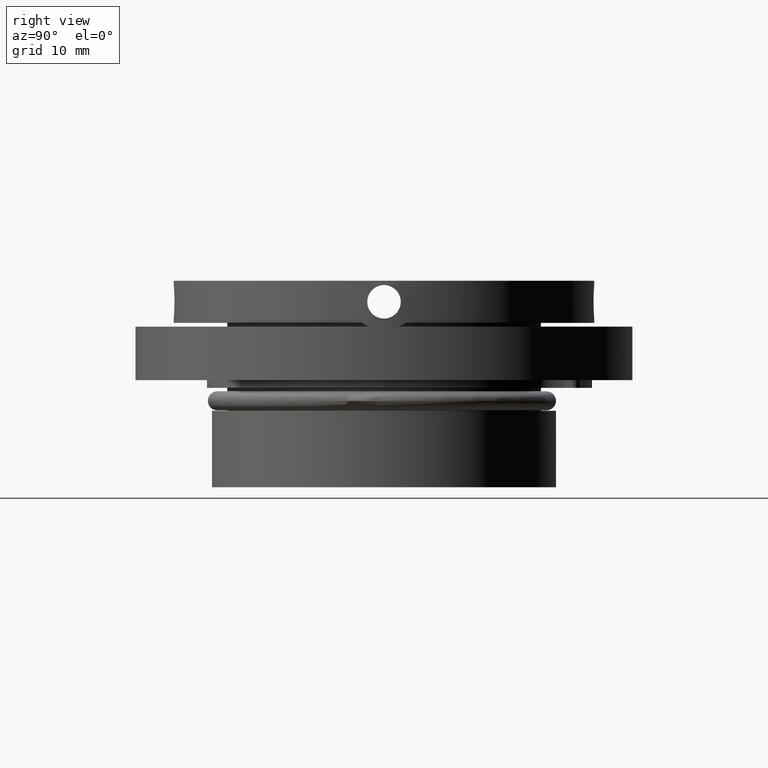
[diagram: clean part render]
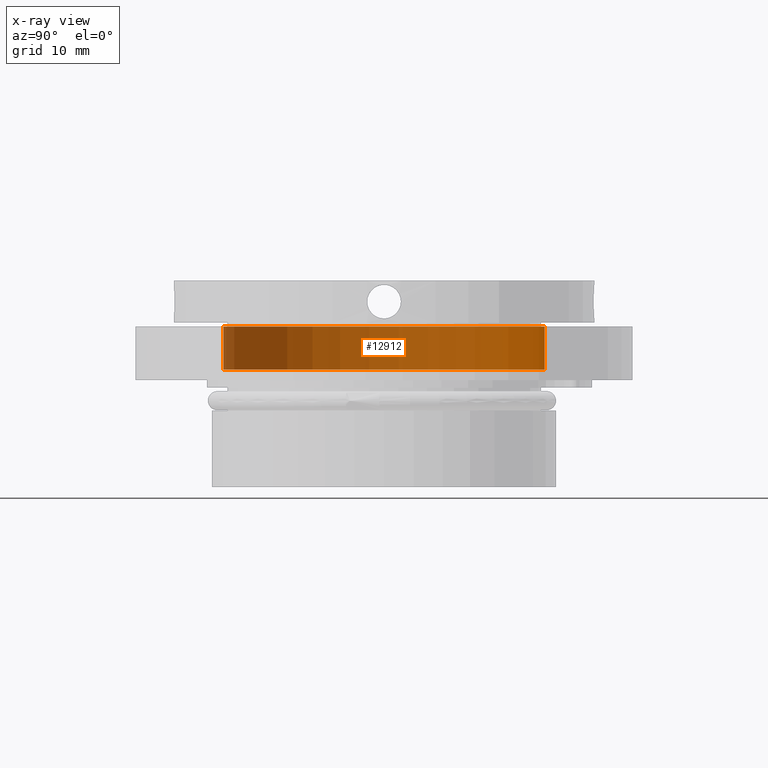
[diagram: x-ray — body ghosted, one internal face saturated and labeled with its STEP entity id]
A machine part, right view, then the same camera in x-ray: the body is ghosted and one INTERNAL B-rep face — a face not visible from any outside direction — is saturated and labeled: STEP entity #12912.
In plain terms, the highlighted cylindrical surface (partial cylindrical patch) has radius 21 mm, axis along (-0, 0, 1).
Its self-contained STEP definition (entity closure, byte-faithful):
#1158 = AXIS2_PLACEMENT_3D ( 'NONE', #4208, #8286, #6990 ) ;
#1847 = CARTESIAN_POINT ( 'NONE',  ( 2.571758278209442450E-15, 21.00000000000000711, 1.899999999999998135 ) ) ;
#2098 = CARTESIAN_POINT ( 'NONE',  ( 0.000000000000000000, -21.00000000000000355, 1.079383496163347022E-14 ) ) ;
#2498 = EDGE_CURVE ( 'NONE', #7186, #10209, #11798, .T. ) ;
#3552 = CARTESIAN_POINT ( 'NONE',  ( 0.000000000000000000, -21.00000000000000711, 1.900000000000019673 ) ) ;
#3725 = DIRECTION ( 'NONE',  ( -0.000000000000000000, 5.139921410301650796E-16, 1.000000000000000000 ) ) ;
#4050 = AXIS2_PLACEMENT_3D ( 'NONE', #9115, #17102, #8996 ) ;
#4208 = CARTESIAN_POINT ( 'NONE',  ( 0.000000000000000000, 0.000000000000000000, 0.000000000000000000 ) ) ;
#5543 = AXIS2_PLACEMENT_3D ( 'NONE', #12136, #10624, #8032 ) ;
#5570 = CARTESIAN_POINT ( 'NONE',  ( 2.571758278209442450E-15, 21.00000000000000711, 7.499999999999991118 ) ) ;
#6990 = DIRECTION ( 'NONE',  ( 0.000000000000000000, -1.000000000000000000, 5.139921410301651782E-16 ) ) ;
#7186 = VERTEX_POINT ( 'NONE', #3552 ) ;
#7736 = CARTESIAN_POINT ( 'NONE',  ( 2.571758278209442056E-15, 21.00000000000000355, -1.079383496163347022E-14 ) ) ;
#8032 = DIRECTION ( 'NONE',  ( 0.000000000000000000, -1.000000000000000000, 4.956352788505162282E-16 ) ) ;
#8286 = DIRECTION ( 'NONE',  ( -0.000000000000000000, 5.139921410301650796E-16, 1.000000000000000000 ) ) ;
#8729 = EDGE_LOOP ( 'NONE', ( #16427, #16000, #16031, #13666 ) ) ;
#8996 = DIRECTION ( 'NONE',  ( 0.000000000000000000, -1.000000000000000000, 5.162867488026210135E-16 ) ) ;
#9115 = CARTESIAN_POINT ( 'NONE',  ( 0.000000000000000000, 9.765850679573183056E-16, 1.900000000000008793 ) ) ;
#10164 = CARTESIAN_POINT ( 'NONE',  ( 0.000000000000000000, -21.00000000000000000, 7.500000000000011546 ) ) ;
#10209 = VERTEX_POINT ( 'NONE', #10164 ) ;
#10310 = VERTEX_POINT ( 'NONE', #5570 ) ;
#10313 = VECTOR ( 'NONE', #13965, 1000.000000000000000 ) ;
#10624 = DIRECTION ( 'NONE',  ( -0.000000000000000000, 5.139921410301650796E-16, 1.000000000000000000 ) ) ;
#10769 = EDGE_CURVE ( 'NONE', #10310, #10209, #13040, .T. ) ;
#11294 = FACE_OUTER_BOUND ( 'NONE', #8729, .T. ) ;
#11798 = LINE ( 'NONE', #2098, #10313 ) ;
#12136 = CARTESIAN_POINT ( 'NONE',  ( 0.000000000000000000, 3.854941057726238689E-15, 7.500000000000001776 ) ) ;
#12912 = ADVANCED_FACE ( 'NONE', ( #11294 ), #17401, .F. ) ;
#13040 = CIRCLE ( 'NONE', #5543, 21.00000000000000355 ) ;
#13400 = LINE ( 'NONE', #7736, #14650 ) ;
#13652 = VERTEX_POINT ( 'NONE', #1847 ) ;
#13666 = ORIENTED_EDGE ( 'NONE', *, *, #2498, .F. ) ;
#13818 = EDGE_CURVE ( 'NONE', #13652, #10310, #13400, .T. ) ;
#13965 = DIRECTION ( 'NONE',  ( -0.000000000000000000, 5.139921410301650796E-16, 1.000000000000000000 ) ) ;
#14650 = VECTOR ( 'NONE', #3725, 1000.000000000000000 ) ;
#14909 = EDGE_CURVE ( 'NONE', #13652, #7186, #15887, .T. ) ;
#15887 = CIRCLE ( 'NONE', #4050, 21.00000000000000711 ) ;
#16000 = ORIENTED_EDGE ( 'NONE', *, *, #13818, .T. ) ;
#16031 = ORIENTED_EDGE ( 'NONE', *, *, #10769, .T. ) ;
#16427 = ORIENTED_EDGE ( 'NONE', *, *, #14909, .F. ) ;
#17102 = DIRECTION ( 'NONE',  ( -0.000000000000000000, 5.139921410301650796E-16, 1.000000000000000000 ) ) ;
#17401 = CYLINDRICAL_SURFACE ( 'NONE', #1158, 21.00000000000000355 ) ;